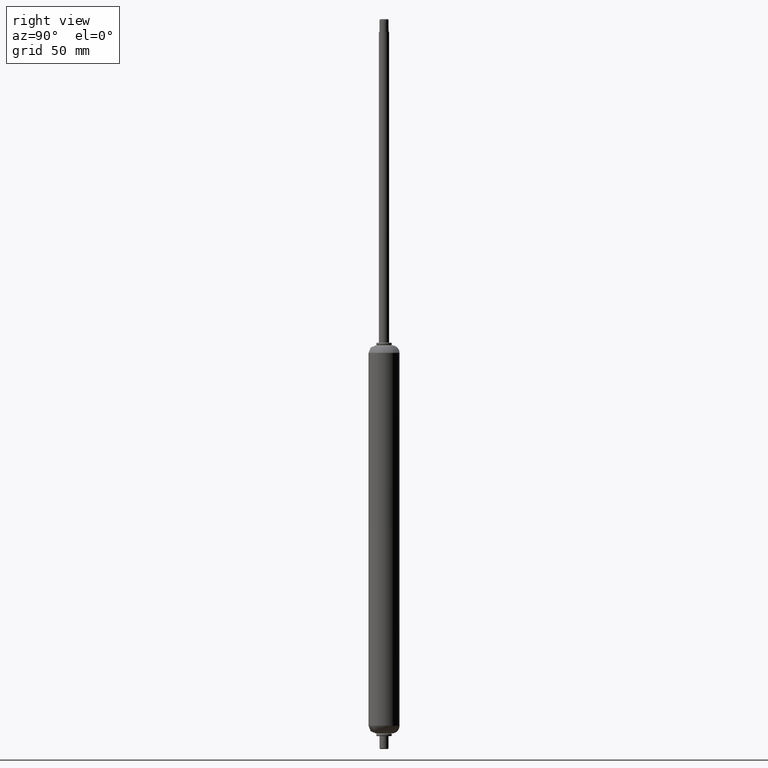
[diagram: clean part render]
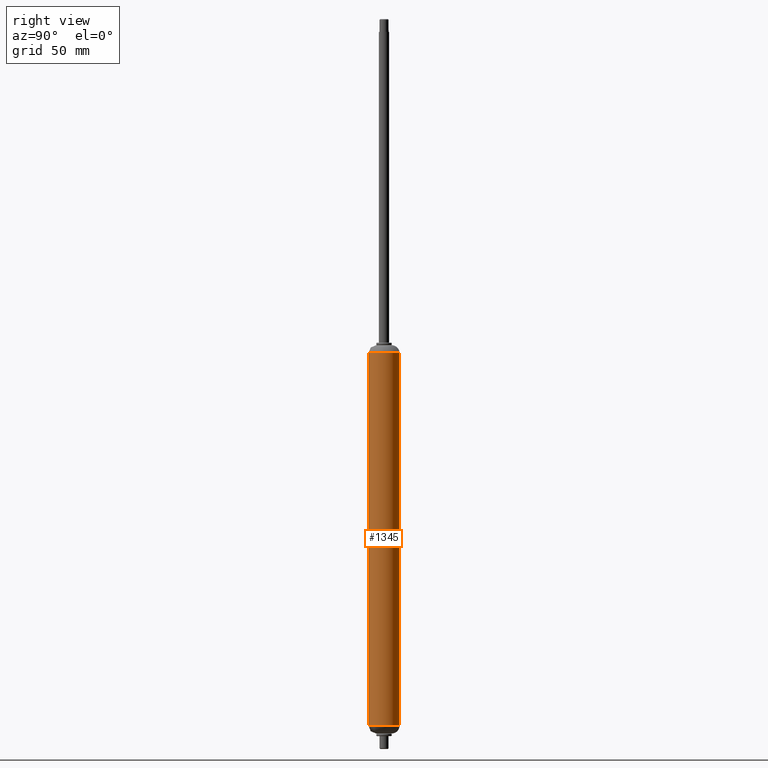
[diagram: same view with one face highlighted and labeled with its STEP entity id]
A machine part, right view. The second image highlights one B-rep face of the part: STEP entity #1345.
In plain terms, the highlighted face is a freeform B-spline surface patch.
Its self-contained STEP definition (entity closure, byte-faithful):
#1179=CARTESIAN_POINT('',(-5.616861472659112,-2.109707846349194,0.600000100000007));
#1180=CARTESIAN_POINT('',(-5.933784116190037,-1.265936710292305,0.600000100000007));
#1181=CARTESIAN_POINT('',(-5.988808790530326,-0.366291237209098,0.600000100000007));
#1182=CARTESIAN_POINT('',(-6.355100027739424,5.622517553321434,0.600000100000007));
#1183=CARTESIAN_POINT('',(-0.366291237208892,5.988808790530532,0.600000100000007));
#1184=CARTESIAN_POINT('',(5.622517553321640,6.355100027739630,0.600000100000007));
#1185=CARTESIAN_POINT('',(5.988808790530738,0.366291237209098,0.600000100000007));
#1186=CARTESIAN_POINT('',(6.355100027739836,-5.622517553321434,0.600000100000007));
#1187=CARTESIAN_POINT('',(0.366291237209304,-5.988808790530532,0.600000100000007));
#1188=CARTESIAN_POINT('',(-5.616861472659112,-2.109707846349194,-150.690004102500150));
#1189=CARTESIAN_POINT('',(-5.933784116190037,-1.265936710292305,-150.690004102500130));
#1190=CARTESIAN_POINT('',(-5.988808790530326,-0.366291237209098,-150.690004102500100));
#1191=CARTESIAN_POINT('',(-6.355100027739424,5.622517553321434,-150.690004102500130));
#1192=CARTESIAN_POINT('',(-0.366291237208892,5.988808790530532,-150.690004102500100));
#1193=CARTESIAN_POINT('',(5.622517553321640,6.355100027739630,-150.690004102500130));
#1194=CARTESIAN_POINT('',(5.988808790530738,0.366291237209098,-150.690004102500100));
#1195=CARTESIAN_POINT('',(6.355100027739836,-5.622517553321434,-150.690004102500130));
#1196=CARTESIAN_POINT('',(0.366291237209304,-5.988808790530532,-150.690004102500100));
#1204=(BOUNDED_SURFACE()B_SPLINE_SURFACE(2,1,((#1179,#1188),(#1180,#1189),(#1181,#1190),(#1182,#1191),(#1183,#1192),(#1184,#1193),(#1185,#1194),(#1186,#1195),(#1187,#1196)),.UNSPECIFIED.,.F.,.F.,.U.)B_SPLINE_SURFACE_WITH_KNOTS((3,2,2,2,3),(2,2),(0.0,1.988225099390634,11.929350596343800,21.870476093296968,31.811601590250142),(0.0,151.290004202500110),.UNSPECIFIED.)GEOMETRIC_REPRESENTATION_ITEM()RATIONAL_B_SPLINE_SURFACE(((0.906274169979695,0.906274169979695),(0.941421356237309,0.941421356237309),(1.0,1.0),(0.707106781186548,0.707106781186548),(1.0,1.0),(0.707106781186548,0.707106781186548),(1.0,1.0),(0.707106781186548,0.707106781186548),(1.0,1.0)))REPRESENTATION_ITEM('')SURFACE());
#1205=CARTESIAN_POINT('',(-5.616861472649271,-2.109707846375408,-2.999999999999995));
#1206=VERTEX_POINT('',#1205);
#1207=CARTESIAN_POINT('',(-5.999999999999130,0.0,-3.0));
#1208=VERTEX_POINT('',#1207);
#1209=CARTESIAN_POINT('',(-5.616861472649271,-2.109707846375409,-2.999999999999995));
#1210=CARTESIAN_POINT('',(-5.999999999999134,-1.089644316429366,-3.000000000000000));
#1211=CARTESIAN_POINT('',(-5.999999999999134,0.0,-3.0));
#1219=(BOUNDED_CURVE()B_SPLINE_CURVE(2,(#1209,#1210,#1211),.UNSPECIFIED.,.F.,.U.)B_SPLINE_CURVE_WITH_KNOTS((3,3),(0.940284170897435,1.0),.UNSPECIFIED.)CURVE()GEOMETRIC_REPRESENTATION_ITEM()RATIONAL_B_SPLINE_CURVE((0.893499554633962,0.930038554400143,1.0))REPRESENTATION_ITEM(''));
#1220=EDGE_CURVE('',#1206,#1208,#1219,.T.);
#1221=ORIENTED_EDGE('',*,*,#1220,.T.);
#1222=CARTESIAN_POINT('',(-0.692785376740033,5.959869832619407,-3.000000000001000));
#1223=VERTEX_POINT('',#1222);
#1224=CARTESIAN_POINT('',(-5.999999999999134,0.0,-3.0));
#1225=CARTESIAN_POINT('',(-5.999999999999133,5.342950203556977,-3.000000000000000));
#1226=CARTESIAN_POINT('',(-0.692785376740033,5.959869832619407,-3.000000000001000));
#1234=(BOUNDED_CURVE()B_SPLINE_CURVE(2,(#1224,#1225,#1226),.UNSPECIFIED.,.F.,.U.)B_SPLINE_CURVE_WITH_KNOTS((3,3),(0.0,0.229999999955844),.UNSPECIFIED.)CURVE()GEOMETRIC_REPRESENTATION_ITEM()RATIONAL_B_SPLINE_CURVE((1.0,0.730538238743355,0.956886118103751))REPRESENTATION_ITEM(''));
#1235=EDGE_CURVE('',#1208,#1223,#1234,.T.);
#1236=ORIENTED_EDGE('',*,*,#1235,.T.);
#1237=CARTESIAN_POINT('',(5.999999999999546,0.0,-3.0));
#1238=VERTEX_POINT('',#1237);
#1239=CARTESIAN_POINT('',(-0.692785376740033,5.959869832619407,-3.000000000001000));
#1240=CARTESIAN_POINT('',(-0.347554975372757,5.999999999999340,-3.0));
#1241=CARTESIAN_POINT('',(2.060574E-013,5.999999999999340,-3.0));
#1242=CARTESIAN_POINT('',(5.999999999999545,5.999999999999341,-3.0));
#1243=CARTESIAN_POINT('',(5.999999999999546,0.0,-3.0));
#1251=(BOUNDED_CURVE()B_SPLINE_CURVE(2,(#1239,#1240,#1241,#1242,#1243),.UNSPECIFIED.,.F.,.U.)B_SPLINE_CURVE_WITH_KNOTS((3,2,3),(0.229999999955844,0.250000000000000,0.500000000000000),.UNSPECIFIED.)CURVE()GEOMETRIC_REPRESENTATION_ITEM()RATIONAL_B_SPLINE_CURVE((0.956886118103750,0.976568542443192,1.0,0.707106781186548,1.0))REPRESENTATION_ITEM(''));
#1252=EDGE_CURVE('',#1223,#1238,#1251,.T.);
#1253=ORIENTED_EDGE('',*,*,#1252,.T.);
#1254=CARTESIAN_POINT('',(0.366291238602621,-5.988808790445319,-2.999999999999995));
#1255=VERTEX_POINT('',#1254);
#1256=CARTESIAN_POINT('',(5.999999999999546,0.0,-3.0));
#1257=CARTESIAN_POINT('',(5.999999999999545,-5.644236398802310,-3.0));
#1258=CARTESIAN_POINT('',(0.366291238602621,-5.988808790445319,-2.999999999999995));
#1266=(BOUNDED_CURVE()B_SPLINE_CURVE(2,(#1256,#1257,#1258),.UNSPECIFIED.,.F.,.U.)B_SPLINE_CURVE_WITH_KNOTS((3,3),(0.500000000000000,0.739332962161680),.UNSPECIFIED.)CURVE()GEOMETRIC_REPRESENTATION_ITEM()RATIONAL_B_SPLINE_CURVE((1.0,0.719603993377229,0.976072041501129))REPRESENTATION_ITEM(''));
#1267=EDGE_CURVE('',#1238,#1255,#1266,.T.);
#1268=ORIENTED_EDGE('',*,*,#1267,.T.);
#1269=CARTESIAN_POINT('',(0.366291238602621,-5.988808790445320,-147.000003306941690));
#1270=VERTEX_POINT('',#1269);
#1271=CARTESIAN_POINT('',(0.366291238602621,-5.988808790445319,-2.999999999999995));
#1272=CARTESIAN_POINT('',(0.366291238602621,-5.988808790445320,-147.000003306941690));
#1273=QUASI_UNIFORM_CURVE('',1,(#1271,#1272),.UNSPECIFIED.,.F.,.U.);
#1274=EDGE_CURVE('',#1255,#1270,#1273,.T.);
#1275=ORIENTED_EDGE('',*,*,#1274,.T.);
#1276=CARTESIAN_POINT('',(5.999999999999527,0.0,-147.000003999999990));
#1277=VERTEX_POINT('',#1276);
#1278=CARTESIAN_POINT('',(5.999999999999527,0.0,-147.000003999999990));
#1279=CARTESIAN_POINT('',(5.999999999999526,-5.644236398802654,-147.000003999999960));
#1280=CARTESIAN_POINT('',(0.366291238602621,-5.988808790445320,-147.000003306941690));
#1288=(BOUNDED_CURVE()B_SPLINE_CURVE(2,(#1278,#1279,#1280),.UNSPECIFIED.,.F.,.U.)B_SPLINE_CURVE_WITH_KNOTS((3,3),(0.500000000000000,0.739332962161691),.UNSPECIFIED.)CURVE()GEOMETRIC_REPRESENTATION_ITEM()RATIONAL_B_SPLINE_CURVE((1.0,0.719603993377216,0.976072041501153))REPRESENTATION_ITEM(''));
#1289=EDGE_CURVE('',#1277,#1270,#1288,.T.);
#1290=ORIENTED_EDGE('',*,*,#1289,.F.);
#1291=CARTESIAN_POINT('',(-0.692785376774795,5.959869832615356,-147.000004000000100));
#1292=VERTEX_POINT('',#1291);
#1293=CARTESIAN_POINT('',(-0.692785376774795,5.959869832615356,-147.000004000000190));
#1294=CARTESIAN_POINT('',(-0.347554975407871,5.999999999999320,-147.000003999999930));
#1295=CARTESIAN_POINT('',(2.060574E-013,5.999999999999321,-147.000003999999990));
#1296=CARTESIAN_POINT('',(5.999999999999526,5.999999999999320,-147.000003999999990));
#1297=CARTESIAN_POINT('',(5.999999999999527,0.0,-147.000003999999990));
#1305=(BOUNDED_CURVE()B_SPLINE_CURVE(2,(#1293,#1294,#1295,#1296,#1297),.UNSPECIFIED.,.F.,.U.)B_SPLINE_CURVE_WITH_KNOTS((3,2,3),(0.229999999953871,0.250000000000000,0.500000000000000),.UNSPECIFIED.)CURVE()GEOMETRIC_REPRESENTATION_ITEM()RATIONAL_B_SPLINE_CURVE((0.956886118099866,0.976568542440880,1.0,0.707106781186548,1.0))REPRESENTATION_ITEM(''));
#1306=EDGE_CURVE('',#1292,#1277,#1305,.T.);
#1307=ORIENTED_EDGE('',*,*,#1306,.F.);
#1308=CARTESIAN_POINT('',(-5.999999999998390,0.0,-147.000002523761310));
#1309=VERTEX_POINT('',#1308);
#1310=CARTESIAN_POINT('',(-5.999999999998390,0.0,-147.000002523761310));
#1311=CARTESIAN_POINT('',(-5.999999999592433,5.342950203541442,-147.000003261880750));
#1312=CARTESIAN_POINT('',(-0.692785376774795,5.959869832615356,-147.000004000000130));
#1320=(BOUNDED_CURVE()B_SPLINE_CURVE(2,(#1310,#1311,#1312),.UNSPECIFIED.,.F.,.U.)B_SPLINE_CURVE_WITH_KNOTS((3,3),(0.0,0.229999999953871),.UNSPECIFIED.)CURVE()GEOMETRIC_REPRESENTATION_ITEM()RATIONAL_B_SPLINE_CURVE((1.0,0.730538238745667,0.956886118099867))REPRESENTATION_ITEM(''));
#1321=EDGE_CURVE('',#1309,#1292,#1320,.T.);
#1322=ORIENTED_EDGE('',*,*,#1321,.F.);
#1323=CARTESIAN_POINT('',(-5.616861472648955,-2.109707846375288,-147.000002570894910));
#1324=VERTEX_POINT('',#1323);
#1325=CARTESIAN_POINT('',(-5.616861472648954,-2.109707846375289,-147.000002570894910));
#1326=CARTESIAN_POINT('',(-5.999999999998390,-1.089644316429234,-147.000002523761220));
#1327=CARTESIAN_POINT('',(-5.999999999998390,0.0,-147.000002523761310));
#1335=(BOUNDED_CURVE()B_SPLINE_CURVE(2,(#1325,#1326,#1327),.UNSPECIFIED.,.F.,.U.)B_SPLINE_CURVE_WITH_KNOTS((3,3),(0.940284170897442,1.0),.UNSPECIFIED.)CURVE()GEOMETRIC_REPRESENTATION_ITEM()RATIONAL_B_SPLINE_CURVE((0.893499554633970,0.930038554400151,1.0))REPRESENTATION_ITEM(''));
#1336=EDGE_CURVE('',#1324,#1309,#1335,.T.);
#1337=ORIENTED_EDGE('',*,*,#1336,.F.);
#1338=CARTESIAN_POINT('',(-5.616861472649271,-2.109707846375408,-2.999999999999995));
#1339=CARTESIAN_POINT('',(-5.616861472648955,-2.109707846375288,-147.000002570894910));
#1340=QUASI_UNIFORM_CURVE('',1,(#1338,#1339),.UNSPECIFIED.,.F.,.U.);
#1341=EDGE_CURVE('',#1206,#1324,#1340,.T.);
#1342=ORIENTED_EDGE('',*,*,#1341,.F.);
#1343=EDGE_LOOP('',(#1221,#1236,#1253,#1268,#1275,#1290,#1307,#1322,#1337,#1342));
#1344=FACE_OUTER_BOUND('',#1343,.T.);
#1345=ADVANCED_FACE('',(#1344),#1204,.T.);